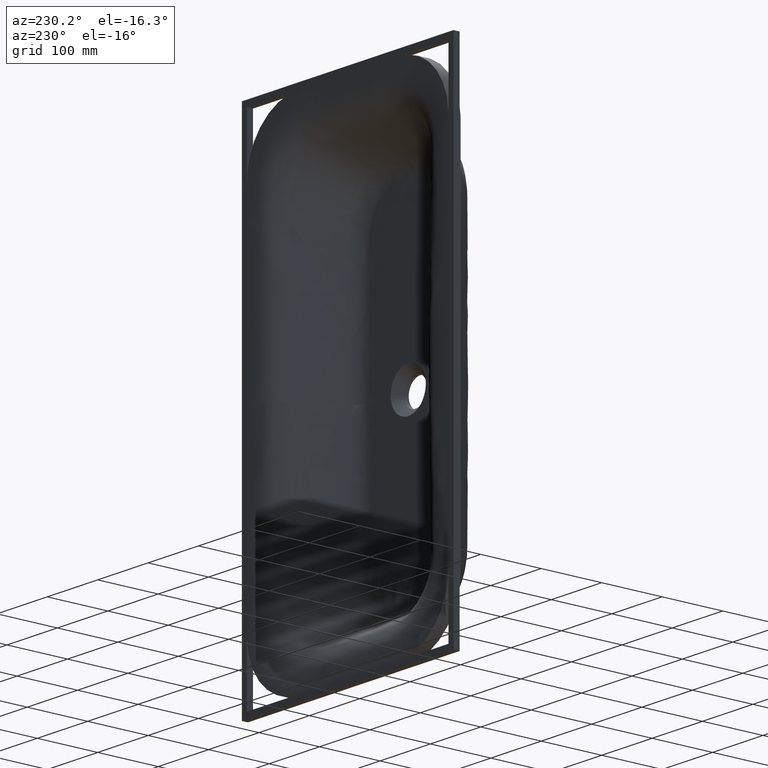
[diagram: clean part render]
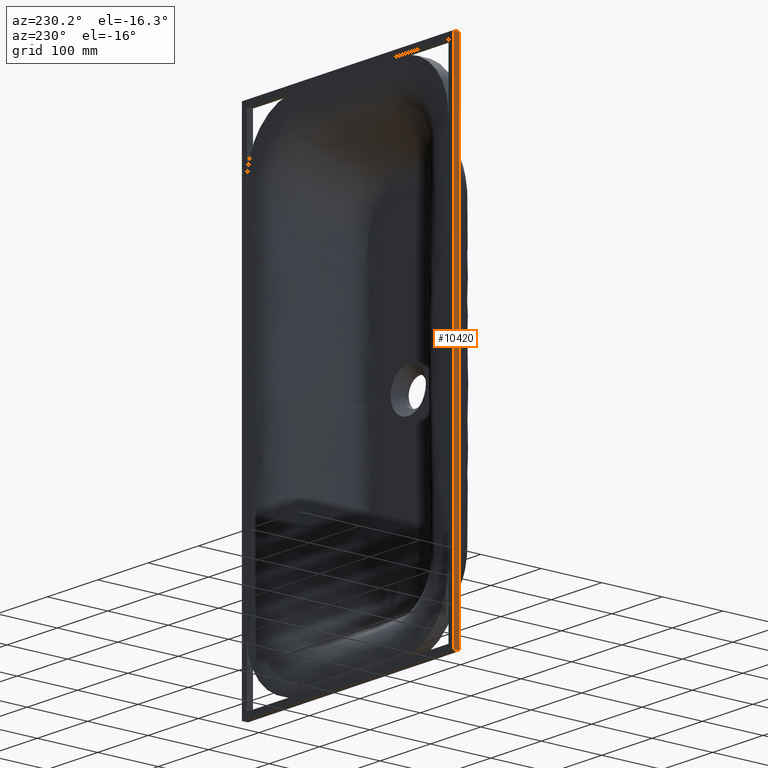
[diagram: same view with one face highlighted and labeled with its STEP entity id]
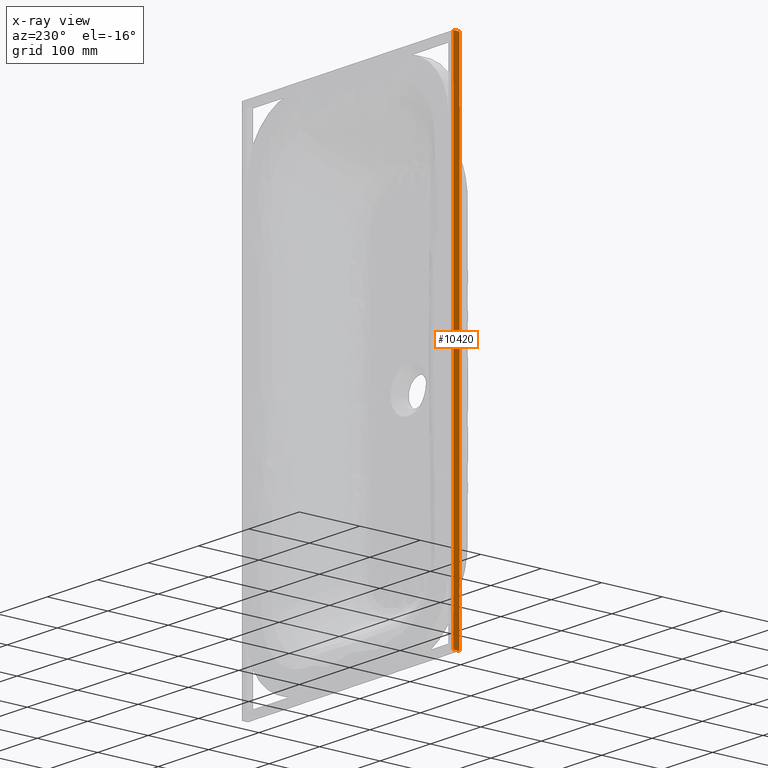
[diagram: x-ray of the same camera — body ghosted, the highlighted face saturated]
A machine part, auxiliary view. The second image highlights one B-rep face of the part: STEP entity #10420.
The next image is the same camera in x-ray: the body ghosted, the highlighted face saturated — about 0% of this face is hidden behind the body in this view.
In plain terms, the highlighted planar face has unit normal (1, -0, 0).
Its self-contained STEP definition (entity closure, byte-faithful):
#657 = EDGE_CURVE ( 'NONE', #10738, #8587, #6844, .T. ) ;
#761 = EDGE_CURVE ( 'NONE', #8004, #10738, #2464, .T. ) ;
#1534 = AXIS2_PLACEMENT_3D ( 'NONE', #3065, #3006, #2996 ) ;
#2177 = EDGE_CURVE ( 'NONE', #6009, #8587, #6816, .T. ) ;
#2464 = LINE ( 'NONE', #8919, #6069 ) ;
#2504 = EDGE_CURVE ( 'NONE', #8004, #6009, #2695, .T. ) ;
#2695 = LINE ( 'NONE', #8053, #9606 ) ;
#2996 = DIRECTION ( 'NONE',  ( 5.551115123125781700E-016, 1.000000000000000000, 0.0000000000000000000 ) ) ;
#3006 = DIRECTION ( 'NONE',  ( 1.000000000000000000, -5.551115123125781700E-016, 1.353930517835540500E-016 ) ) ;
#3023 = PLANE ( 'NONE',  #1534 ) ;
#3043 = CARTESIAN_POINT ( 'NONE',  ( -209.9999999999999400, 120.0000000000001100, 410.0000000000005100 ) ) ;
#3065 = CARTESIAN_POINT ( 'NONE',  ( -209.9999999999999400, 110.0000000000001300, 410.0000000000005100 ) ) ;
#3931 = CARTESIAN_POINT ( 'NONE',  ( -209.9999999999998300, 120.0000000000024000, -410.0000000000001100 ) ) ;
#4118 = FACE_OUTER_BOUND ( 'NONE', #6147, .T. ) ;
#4188 = ORIENTED_EDGE ( 'NONE', *, *, #657, .T. ) ;
#4251 = DIRECTION ( 'NONE',  ( 5.551115123125777800E-016, 1.000000000000000000, 2.775557561562889400E-015 ) ) ;
#4321 = VECTOR ( 'NONE', #4251, 1000.000000000000000 ) ;
#4403 = CARTESIAN_POINT ( 'NONE',  ( -209.9999999999999400, 110.0000000000001300, 410.0000000000005100 ) ) ;
#5155 = CARTESIAN_POINT ( 'NONE',  ( -209.9999999999999400, 120.0000000000001100, 410.0000000000005100 ) ) ;
#6009 = VERTEX_POINT ( 'NONE', #9858 ) ;
#6069 = VECTOR ( 'NONE', #8585, 1000.000000000000000 ) ;
#6147 = EDGE_LOOP ( 'NONE', ( #4188, #10949, #10671, #7108 ) ) ;
#6816 = LINE ( 'NONE', #8386, #4321 ) ;
#6844 = LINE ( 'NONE', #5155, #7377 ) ;
#7108 = ORIENTED_EDGE ( 'NONE', *, *, #761, .T. ) ;
#7377 = VECTOR ( 'NONE', #8703, 1000.000000000000000 ) ;
#7648 = DIRECTION ( 'NONE',  ( 1.353930517835555700E-016, 2.775557561562889400E-015, -1.000000000000000000 ) ) ;
#8004 = VERTEX_POINT ( 'NONE', #4403 ) ;
#8053 = CARTESIAN_POINT ( 'NONE',  ( -209.9999999999999400, 110.0000000000001300, 410.0000000000005100 ) ) ;
#8386 = CARTESIAN_POINT ( 'NONE',  ( -209.9999999999998300, 110.0000000000024000, -410.0000000000001100 ) ) ;
#8585 = DIRECTION ( 'NONE',  ( 5.551115123125777800E-016, 1.000000000000000000, 2.775557561562889400E-015 ) ) ;
#8587 = VERTEX_POINT ( 'NONE', #3931 ) ;
#8703 = DIRECTION ( 'NONE',  ( 1.353930517835555700E-016, 2.775557561562889400E-015, -1.000000000000000000 ) ) ;
#8919 = CARTESIAN_POINT ( 'NONE',  ( -209.9999999999999400, 110.0000000000001300, 410.0000000000005100 ) ) ;
#9606 = VECTOR ( 'NONE', #7648, 1000.000000000000000 ) ;
#9858 = CARTESIAN_POINT ( 'NONE',  ( -209.9999999999998300, 110.0000000000024000, -410.0000000000001100 ) ) ;
#10420 = ADVANCED_FACE ( 'NONE', ( #4118 ), #3023, .F. ) ;
#10671 = ORIENTED_EDGE ( 'NONE', *, *, #2504, .F. ) ;
#10738 = VERTEX_POINT ( 'NONE', #3043 ) ;
#10949 = ORIENTED_EDGE ( 'NONE', *, *, #2177, .F. ) ;